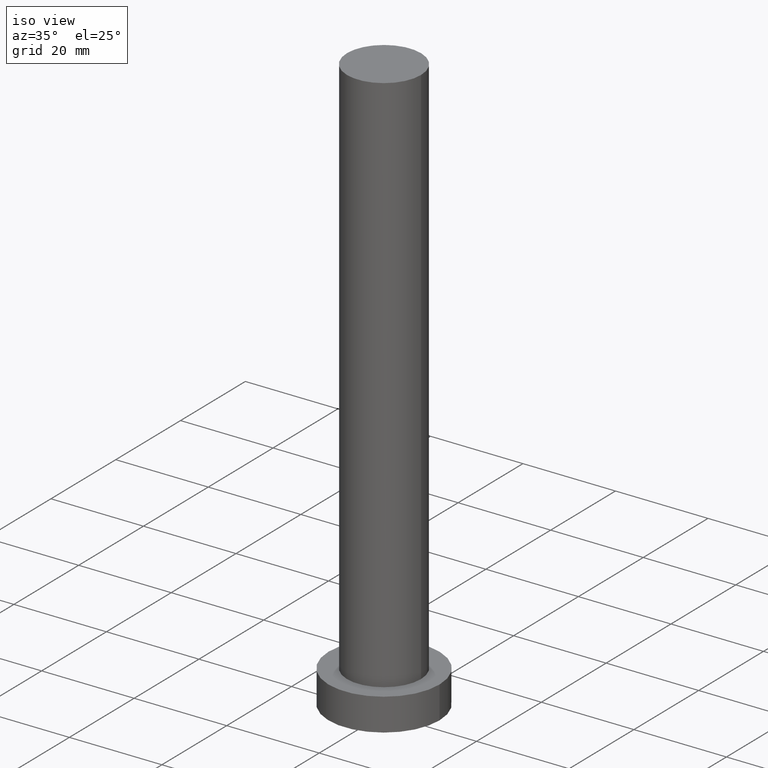
[diagram: clean part render]
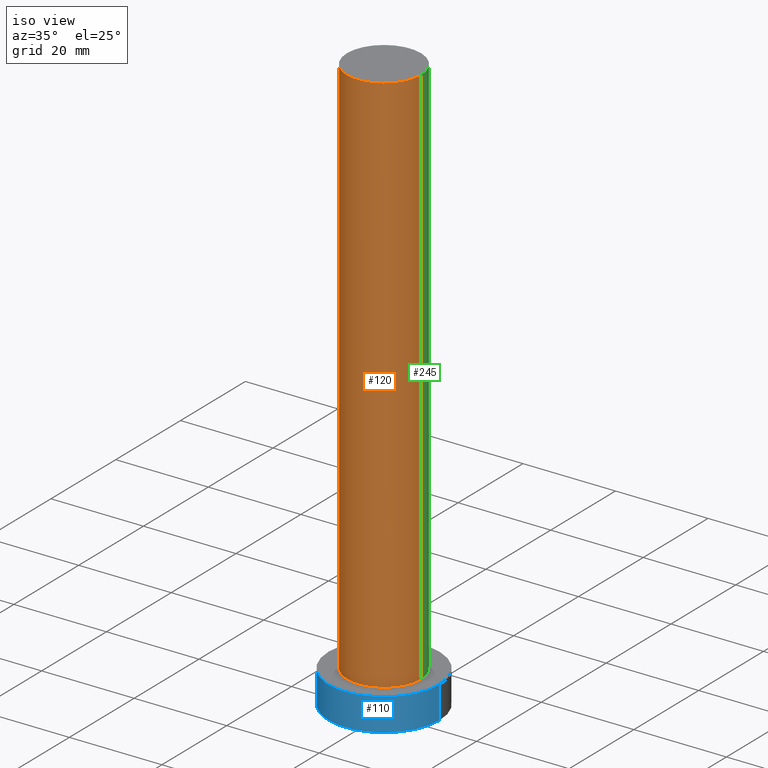
[diagram: same view with three faces highlighted in distinct colors, each labeled with its STEP entity id]
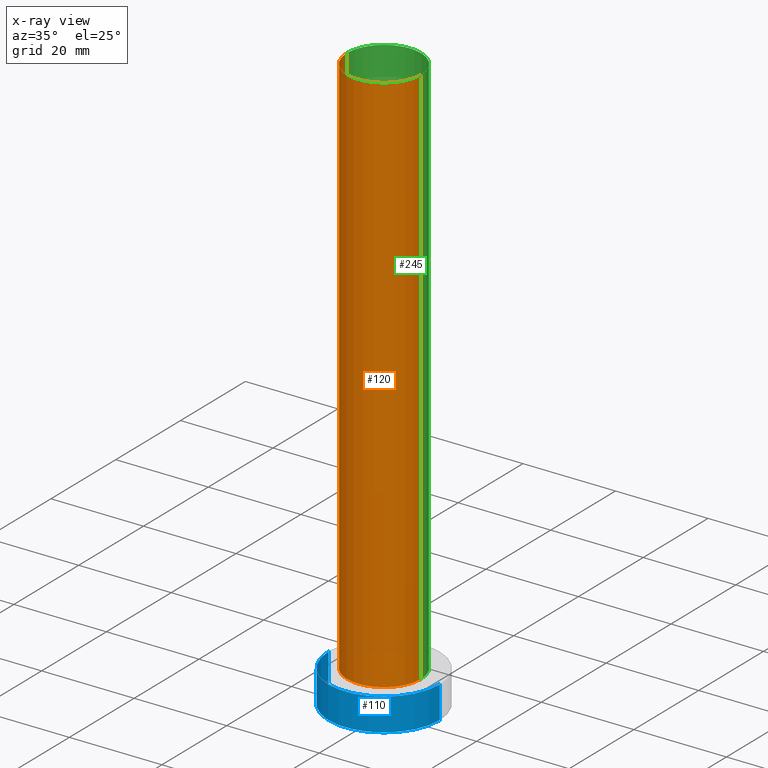
[diagram: x-ray of the same camera — body ghosted, the three highlighted faces saturated]
A machine part, iso view with three faces highlighted in distinct colors.
The next image is the same camera in x-ray (body ghosted, the three faces saturated) — at least one of them is partly hidden behind the body in this view.
Their STEP definitions:

[orange] entity #120 — the highlighted cylindrical surface (partial cylindrical patch) has radius 8 mm, axis along (-0, -0, -1).
#3 = DIRECTION ( 'NONE',  ( 1.000000000000000000, 0.000000000000000000, 0.000000000000000000 ) ) ;
#4 = EDGE_LOOP ( 'NONE', ( #195, #255, #137, #97 ) ) ;
#6 = CARTESIAN_POINT ( 'NONE',  ( 0.000000000000000000, 0.000000000000000000, 125.0000000000000000 ) ) ;
#19 = CARTESIAN_POINT ( 'NONE',  ( 0.000000000000000000, 0.000000000000000000, 125.0000000000000000 ) ) ;
#20 = AXIS2_PLACEMENT_3D ( 'NONE', #19, #85, #3 ) ;
#29 = DIRECTION ( 'NONE',  ( -0.000000000000000000, -0.000000000000000000, -1.000000000000000000 ) ) ;
#43 = CIRCLE ( 'NONE', #232, 8.000000000000000000 ) ;
#44 = CARTESIAN_POINT ( 'NONE',  ( 8.000000000000000000, 9.797174393178825657E-16, 7.000000000000000000 ) ) ;
#47 = LINE ( 'NONE', #107, #95 ) ;
#52 = DIRECTION ( 'NONE',  ( 0.000000000000000000, 0.000000000000000000, 1.000000000000000000 ) ) ;
#56 = VERTEX_POINT ( 'NONE', #123 ) ;
#84 = VERTEX_POINT ( 'NONE', #203 ) ;
#85 = DIRECTION ( 'NONE',  ( 0.000000000000000000, 0.000000000000000000, 1.000000000000000000 ) ) ;
#92 = DIRECTION ( 'NONE',  ( -0.000000000000000000, -0.000000000000000000, -1.000000000000000000 ) ) ;
#95 = VECTOR ( 'NONE', #92, 1000.000000000000000 ) ;
#97 = ORIENTED_EDGE ( 'NONE', *, *, #197, .T. ) ;
#101 = EDGE_CURVE ( 'NONE', #84, #56, #112, .T. ) ;
#105 = FACE_OUTER_BOUND ( 'NONE', #4, .T. ) ;
#107 = CARTESIAN_POINT ( 'NONE',  ( 8.000000000000000000, 9.797174393178825657E-16, 125.0000000000000000 ) ) ;
#108 = CARTESIAN_POINT ( 'NONE',  ( -8.000000000000000000, 0.000000000000000000, 7.000000000000000000 ) ) ;
#112 = CIRCLE ( 'NONE', #20, 8.000000000000000000 ) ;
#114 = EDGE_CURVE ( 'NONE', #84, #145, #200, .T. ) ;
#120 = ADVANCED_FACE ( 'NONE', ( #105 ), #184, .T. ) ;
#123 = CARTESIAN_POINT ( 'NONE',  ( 8.000000000000000000, 9.797174393178825657E-16, 125.0000000000000000 ) ) ;
#137 = ORIENTED_EDGE ( 'NONE', *, *, #114, .T. ) ;
#145 = VERTEX_POINT ( 'NONE', #108 ) ;
#161 = CARTESIAN_POINT ( 'NONE',  ( -8.000000000000000000, 0.000000000000000000, 125.0000000000000000 ) ) ;
#162 = EDGE_CURVE ( 'NONE', #56, #192, #47, .T. ) ;
#166 = CARTESIAN_POINT ( 'NONE',  ( 0.000000000000000000, 0.000000000000000000, 7.000000000000000000 ) ) ;
#184 = CYLINDRICAL_SURFACE ( 'NONE', #239, 8.000000000000000000 ) ;
#192 = VERTEX_POINT ( 'NONE', #44 ) ;
#195 = ORIENTED_EDGE ( 'NONE', *, *, #162, .F. ) ;
#197 = EDGE_CURVE ( 'NONE', #145, #192, #43, .T. ) ;
#200 = LINE ( 'NONE', #161, #231 ) ;
#203 = CARTESIAN_POINT ( 'NONE',  ( -8.000000000000000000, 0.000000000000000000, 125.0000000000000000 ) ) ;
#204 = DIRECTION ( 'NONE',  ( -1.000000000000000000, 0.000000000000000000, 0.000000000000000000 ) ) ;
#224 = DIRECTION ( 'NONE',  ( 1.000000000000000000, 0.000000000000000000, 0.000000000000000000 ) ) ;
#231 = VECTOR ( 'NONE', #237, 1000.000000000000000 ) ;
#232 = AXIS2_PLACEMENT_3D ( 'NONE', #166, #52, #224 ) ;
#237 = DIRECTION ( 'NONE',  ( -0.000000000000000000, -0.000000000000000000, -1.000000000000000000 ) ) ;
#239 = AXIS2_PLACEMENT_3D ( 'NONE', #6, #29, #204 ) ;
#255 = ORIENTED_EDGE ( 'NONE', *, *, #101, .F. ) ;

[blue] entity #110 — the highlighted cylindrical surface (partial cylindrical patch) has radius 12 mm, axis along (-0, -0, -1).
#7 = DIRECTION ( 'NONE',  ( -0.000000000000000000, -0.000000000000000000, -1.000000000000000000 ) ) ;
#15 = AXIS2_PLACEMENT_3D ( 'NONE', #240, #104, #42 ) ;
#35 = AXIS2_PLACEMENT_3D ( 'NONE', #228, #226, #168 ) ;
#36 = EDGE_CURVE ( 'NONE', #100, #160, #90, .T. ) ;
#37 = CARTESIAN_POINT ( 'NONE',  ( -12.00000000000000178, 0.000000000000000000, 7.000000000000000000 ) ) ;
#38 = DIRECTION ( 'NONE',  ( -0.000000000000000000, -0.000000000000000000, -1.000000000000000000 ) ) ;
#42 = DIRECTION ( 'NONE',  ( 1.000000000000000000, 0.000000000000000000, 0.000000000000000000 ) ) ;
#57 = ORIENTED_EDGE ( 'NONE', *, *, #36, .T. ) ;
#59 = VECTOR ( 'NONE', #88, 1000.000000000000000 ) ;
#61 = EDGE_LOOP ( 'NONE', ( #254, #157, #215, #57 ) ) ;
#62 = CYLINDRICAL_SURFACE ( 'NONE', #246, 12.00000000000000178 ) ;
#76 = CARTESIAN_POINT ( 'NONE',  ( 12.00000000000000178, 1.469576158976824144E-15, 0.000000000000000000 ) ) ;
#80 = VERTEX_POINT ( 'NONE', #37 ) ;
#82 = FACE_OUTER_BOUND ( 'NONE', #61, .T. ) ;
#88 = DIRECTION ( 'NONE',  ( -0.000000000000000000, -0.000000000000000000, -1.000000000000000000 ) ) ;
#90 = CIRCLE ( 'NONE', #15, 12.00000000000000178 ) ;
#96 = VERTEX_POINT ( 'NONE', #121 ) ;
#100 = VERTEX_POINT ( 'NONE', #196 ) ;
#104 = DIRECTION ( 'NONE',  ( 0.000000000000000000, 0.000000000000000000, 1.000000000000000000 ) ) ;
#110 = ADVANCED_FACE ( 'NONE', ( #82 ), #62, .T. ) ;
#121 = CARTESIAN_POINT ( 'NONE',  ( 12.00000000000000178, 1.469576158976824144E-15, 7.000000000000000000 ) ) ;
#140 = CARTESIAN_POINT ( 'NONE',  ( 0.000000000000000000, 0.000000000000000000, 7.000000000000000000 ) ) ;
#157 = ORIENTED_EDGE ( 'NONE', *, *, #191, .F. ) ;
#160 = VERTEX_POINT ( 'NONE', #76 ) ;
#168 = DIRECTION ( 'NONE',  ( 1.000000000000000000, 0.000000000000000000, 0.000000000000000000 ) ) ;
#179 = CIRCLE ( 'NONE', #35, 12.00000000000000178 ) ;
#185 = CARTESIAN_POINT ( 'NONE',  ( -12.00000000000000178, 0.000000000000000000, 7.000000000000000000 ) ) ;
#187 = LINE ( 'NONE', #248, #59 ) ;
#191 = EDGE_CURVE ( 'NONE', #80, #96, #179, .T. ) ;
#196 = CARTESIAN_POINT ( 'NONE',  ( -12.00000000000000178, 0.000000000000000000, 0.000000000000000000 ) ) ;
#198 = DIRECTION ( 'NONE',  ( -1.000000000000000000, 0.000000000000000000, 0.000000000000000000 ) ) ;
#201 = EDGE_CURVE ( 'NONE', #96, #160, #187, .T. ) ;
#207 = LINE ( 'NONE', #185, #242 ) ;
#215 = ORIENTED_EDGE ( 'NONE', *, *, #222, .T. ) ;
#222 = EDGE_CURVE ( 'NONE', #80, #100, #207, .T. ) ;
#226 = DIRECTION ( 'NONE',  ( 0.000000000000000000, 0.000000000000000000, 1.000000000000000000 ) ) ;
#228 = CARTESIAN_POINT ( 'NONE',  ( 0.000000000000000000, 0.000000000000000000, 7.000000000000000000 ) ) ;
#240 = CARTESIAN_POINT ( 'NONE',  ( 0.000000000000000000, 0.000000000000000000, 0.000000000000000000 ) ) ;
#242 = VECTOR ( 'NONE', #7, 1000.000000000000000 ) ;
#246 = AXIS2_PLACEMENT_3D ( 'NONE', #140, #38, #198 ) ;
#248 = CARTESIAN_POINT ( 'NONE',  ( 12.00000000000000178, 1.469576158976824144E-15, 7.000000000000000000 ) ) ;
#254 = ORIENTED_EDGE ( 'NONE', *, *, #201, .F. ) ;

[green] entity #245 — the highlighted cylindrical surface (partial cylindrical patch) has radius 8 mm, axis along (-0, -0, -1).
#5 = DIRECTION ( 'NONE',  ( 0.000000000000000000, 0.000000000000000000, 1.000000000000000000 ) ) ;
#8 = DIRECTION ( 'NONE',  ( 0.000000000000000000, 0.000000000000000000, 1.000000000000000000 ) ) ;
#10 = DIRECTION ( 'NONE',  ( -0.000000000000000000, -0.000000000000000000, -1.000000000000000000 ) ) ;
#17 = EDGE_LOOP ( 'NONE', ( #24, #103, #218, #159 ) ) ;
#24 = ORIENTED_EDGE ( 'NONE', *, *, #98, .F. ) ;
#40 = CARTESIAN_POINT ( 'NONE',  ( 0.000000000000000000, 0.000000000000000000, 125.0000000000000000 ) ) ;
#44 = CARTESIAN_POINT ( 'NONE',  ( 8.000000000000000000, 9.797174393178825657E-16, 7.000000000000000000 ) ) ;
#45 = AXIS2_PLACEMENT_3D ( 'NONE', #40, #5, #178 ) ;
#47 = LINE ( 'NONE', #107, #95 ) ;
#56 = VERTEX_POINT ( 'NONE', #123 ) ;
#69 = FACE_OUTER_BOUND ( 'NONE', #17, .T. ) ;
#84 = VERTEX_POINT ( 'NONE', #203 ) ;
#92 = DIRECTION ( 'NONE',  ( -0.000000000000000000, -0.000000000000000000, -1.000000000000000000 ) ) ;
#95 = VECTOR ( 'NONE', #92, 1000.000000000000000 ) ;
#98 = EDGE_CURVE ( 'NONE', #56, #84, #131, .T. ) ;
#99 = CIRCLE ( 'NONE', #175, 8.000000000000000000 ) ;
#103 = ORIENTED_EDGE ( 'NONE', *, *, #162, .T. ) ;
#107 = CARTESIAN_POINT ( 'NONE',  ( 8.000000000000000000, 9.797174393178825657E-16, 125.0000000000000000 ) ) ;
#108 = CARTESIAN_POINT ( 'NONE',  ( -8.000000000000000000, 0.000000000000000000, 7.000000000000000000 ) ) ;
#114 = EDGE_CURVE ( 'NONE', #84, #145, #200, .T. ) ;
#123 = CARTESIAN_POINT ( 'NONE',  ( 8.000000000000000000, 9.797174393178825657E-16, 125.0000000000000000 ) ) ;
#127 = DIRECTION ( 'NONE',  ( 1.000000000000000000, 0.000000000000000000, 0.000000000000000000 ) ) ;
#131 = CIRCLE ( 'NONE', #45, 8.000000000000000000 ) ;
#135 = AXIS2_PLACEMENT_3D ( 'NONE', #244, #10, #149 ) ;
#145 = VERTEX_POINT ( 'NONE', #108 ) ;
#146 = CYLINDRICAL_SURFACE ( 'NONE', #135, 8.000000000000000000 ) ;
#149 = DIRECTION ( 'NONE',  ( -1.000000000000000000, 0.000000000000000000, 0.000000000000000000 ) ) ;
#155 = EDGE_CURVE ( 'NONE', #192, #145, #99, .T. ) ;
#159 = ORIENTED_EDGE ( 'NONE', *, *, #114, .F. ) ;
#161 = CARTESIAN_POINT ( 'NONE',  ( -8.000000000000000000, 0.000000000000000000, 125.0000000000000000 ) ) ;
#162 = EDGE_CURVE ( 'NONE', #56, #192, #47, .T. ) ;
#175 = AXIS2_PLACEMENT_3D ( 'NONE', #251, #8, #127 ) ;
#178 = DIRECTION ( 'NONE',  ( 1.000000000000000000, 0.000000000000000000, 0.000000000000000000 ) ) ;
#192 = VERTEX_POINT ( 'NONE', #44 ) ;
#200 = LINE ( 'NONE', #161, #231 ) ;
#203 = CARTESIAN_POINT ( 'NONE',  ( -8.000000000000000000, 0.000000000000000000, 125.0000000000000000 ) ) ;
#218 = ORIENTED_EDGE ( 'NONE', *, *, #155, .T. ) ;
#231 = VECTOR ( 'NONE', #237, 1000.000000000000000 ) ;
#237 = DIRECTION ( 'NONE',  ( -0.000000000000000000, -0.000000000000000000, -1.000000000000000000 ) ) ;
#244 = CARTESIAN_POINT ( 'NONE',  ( 0.000000000000000000, 0.000000000000000000, 125.0000000000000000 ) ) ;
#245 = ADVANCED_FACE ( 'NONE', ( #69 ), #146, .T. ) ;
#251 = CARTESIAN_POINT ( 'NONE',  ( 0.000000000000000000, 0.000000000000000000, 7.000000000000000000 ) ) ;